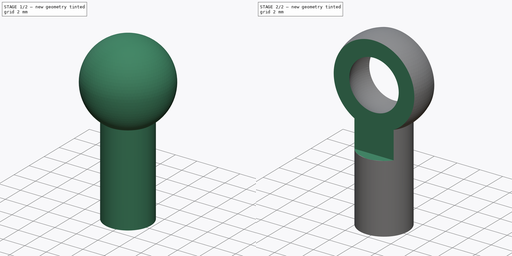
[diagram: build sequence overview — one tinted view per stage of 2, left to right]
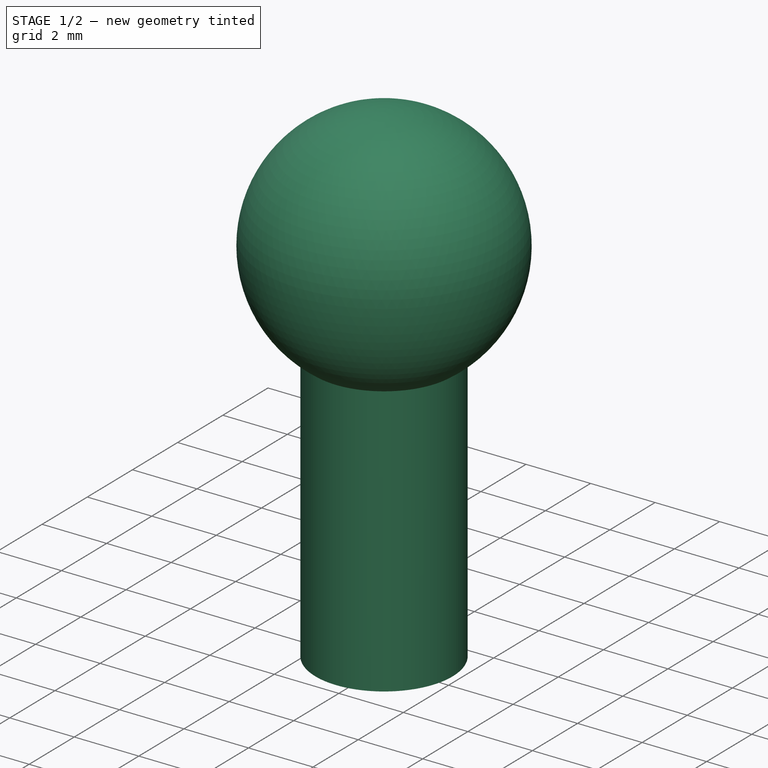
[diagram: stage 1 of 2 — iso view after this stage's code; geometry added in this stage tinted green]
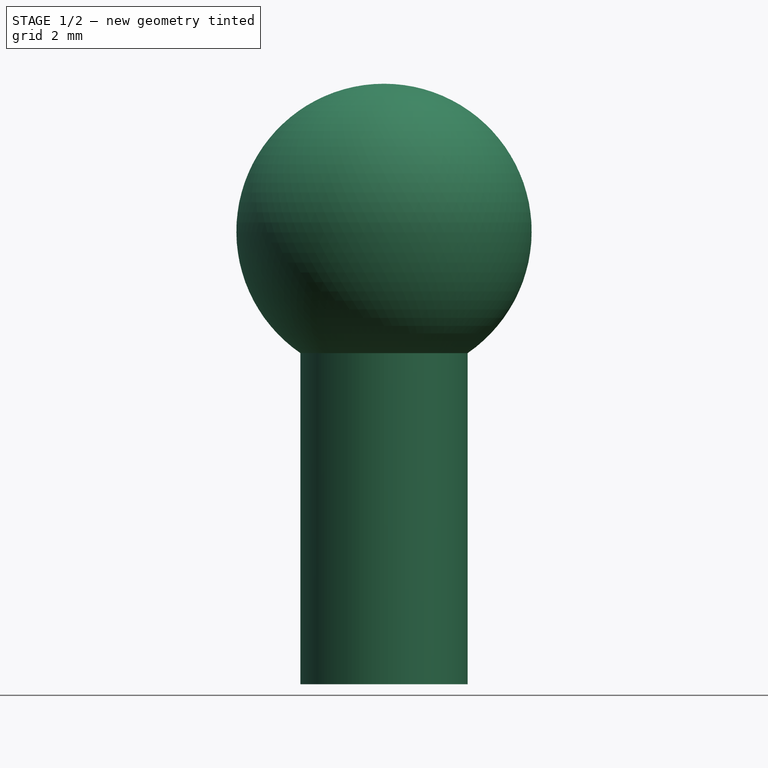
[diagram: stage 1 of 2 — front view after this stage's code; geometry added in this stage tinted green]
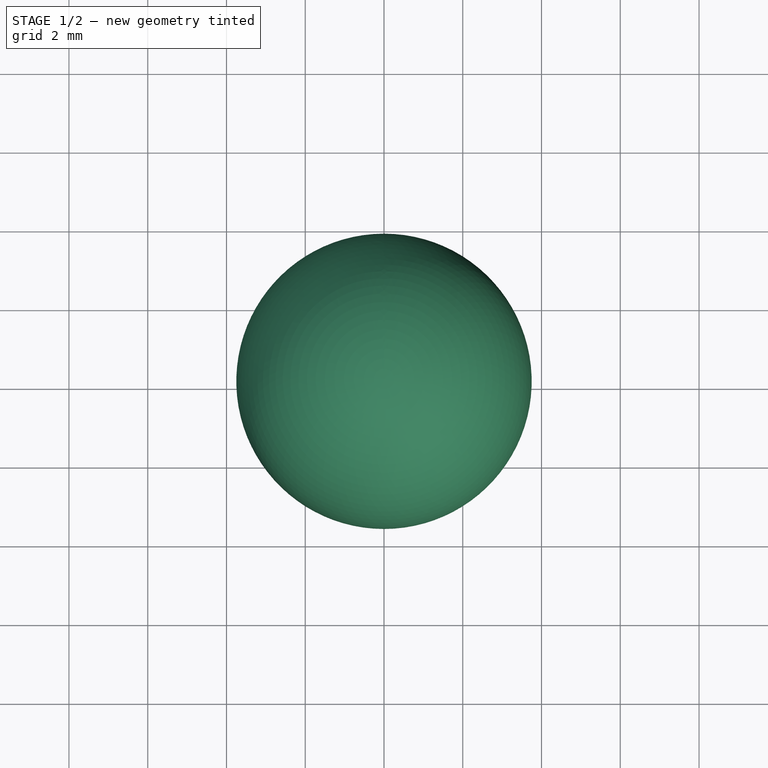
[diagram: stage 1 of 2 — top view after this stage's code; geometry added in this stage tinted green]
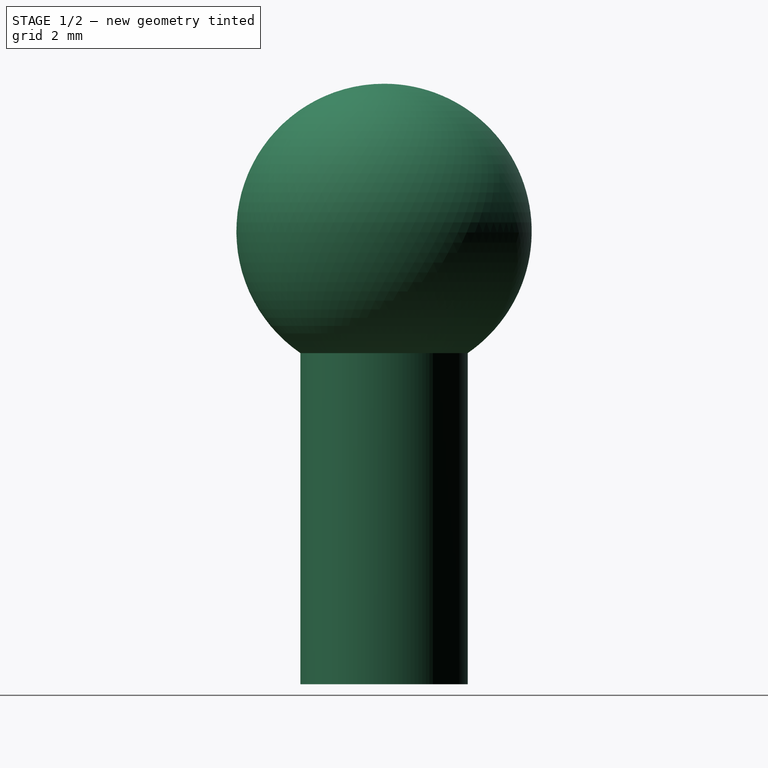
[diagram: stage 1 of 2 — right view after this stage's code; geometry added in this stage tinted green]
FCSTD DOCUMENT  (FreeCAD 1.0R39109 (Git))
Label: M2RodEndBody
License: All rights reserved
LicenseURL: http://en.wikipedia.org/wiki/All_rights_reserved
objects: Sketcher::SketchObject×2, PartDesign::Revolution×1, PartDesign::Pocket×1, PartDesign::Body×1, App::Link×1
note: 11 computed .brp shape members not serialized (recipe doc carries the construction recipe); baked Part::Feature solids carry a one-line shape summary decoded from their .brp
EXTERNAL_REF file=../../Dimentions.FCStd obj=dd

FEATURE [Sketcher::SketchObject] Sketch
  ArcFitTolerance = 1e-06
  AttachmentSupport = -> [YZ_Plane]
  FullyConstrained = true
  MakeInternals = false
  MapMode = 5
  Placement = pos=(0,0,0) rot=(0.57735,0.57735,0.57735;2.0944rad)
  expr: .Constraints.BallDiameter = <<M2RodEnd>>.BallDiameter
  expr: .Constraints.BoltHole = <<M2RodEnd>>.HoleDiameter
  expr: .Constraints.HeadDiameter = <<M2RodEnd>>.HeadDiameter
  expr: .Constraints.ShaftDiameter = <<M2RodEnd>>.ShaftDiameter
  expr: .Constraints.TotalLength = <<M2RodEnd>>.TotalLength
  sketch-geometry (18):
    g0: LineSegment StartX=2.125 StartY=-4.2051 StartZ=0 EndX=2.125 EndY=4.2051 EndZ=0
    g1: LineSegment [constr] StartX=2.125 StartY=4.2051 StartZ=0 EndX=-2.125 EndY=4.2051 EndZ=0
    g2: LineSegment [constr] StartX=-2.125 StartY=4.2051 StartZ=0 EndX=-2.125 EndY=-4.2051 EndZ=0
    g3: Circle [constr] CenterX=9.2e-15 CenterY=-7.2949 CenterZ=0 NormalX=0 NormalY=0 NormalZ=1 AngleXU=0 Radius=3.75
    g4: LineSegment [constr] StartX=-2.125 StartY=-4.2051 StartZ=0 EndX=-1 EndY=-4.2051 EndZ=0
    g5: LineSegment [constr] StartX=-1 StartY=-4.2051 StartZ=0 EndX=-1 EndY=3.0801 EndZ=0
    g6: LineSegment StartX=1 StartY=3.0801 StartZ=0 EndX=1 EndY=-4.2051 EndZ=0
    g7: LineSegment StartX=1 StartY=-4.2051 StartZ=0 EndX=2.125 EndY=-4.2051 EndZ=0
    g8: LineSegment [constr] StartX=1 StartY=4.2051 StartZ=0 EndX=1 EndY=3.0801 EndZ=0
    g9: LineSegment [constr] StartX=1 StartY=3.0801 StartZ=0 EndX=2.125 EndY=3.0801 EndZ=0
    g10: ArcOfCircle CenterX=9.2e-15 CenterY=7.2949 CenterZ=0 NormalX=0 NormalY=0 NormalZ=1 AngleXU=0 Radius=2.5 StartAngle=4.71239 EndAngle=7.85398
    g11: ArcOfCircle [constr] CenterX=3.34022e-07 CenterY=7.2949 CenterZ=0 NormalX=0 NormalY=0 NormalZ=1 AngleXU=0 Radius=2.5 StartAngle=1.5708 EndAngle=4.71239
    g12: ArcOfCircle CenterX=9.2e-15 CenterY=7.2949 CenterZ=0 NormalX=0 NormalY=0 NormalZ=1 AngleXU=0 Radius=3.75 StartAngle=5.31484 EndAngle=7.85398
    g13: ArcOfCircle [constr] CenterX=9.2e-15 CenterY=7.2949 CenterZ=0 NormalX=0 NormalY=0 NormalZ=1 AngleXU=0 Radius=3.75 StartAngle=1.5708 EndAngle=4.10993
    g14: LineSegment [constr] StartX=-1 StartY=3.0801 StartZ=0 EndX=-4e-16 EndY=3.0801 EndZ=0
    g15: LineSegment StartX=-4e-16 StartY=3.0801 StartZ=0 EndX=1 EndY=3.0801 EndZ=0
    g16: LineSegment StartX=4e-16 StartY=11.0449 StartZ=0 EndX=2e-16 EndY=9.7949 EndZ=0
    g17: LineSegment StartX=-4e-16 StartY=4.7949 StartZ=0 EndX=-4e-16 EndY=3.0801 EndZ=0
  constraints (50):
    c: Coincident(g0,g1)
    c: Coincident(g1,g2)
    c: Horizontal(g1)
    c: Vertical(g0)
    c: Vertical(g2)
    c: Symmetric(g2,g0,g-2)
    c: DistanceX(g2,g0) = 4.25  'ShaftDiameter'
    c: PointOnObject(g0,g3)
    c: Coincident(g2,g4)
    c: Horizontal(g4)
    c: Coincident(g4,g5)
    c: Vertical(g5)
    c: Vertical(g6)
    c: Coincident(g6,g7)
    c: Coincident(g7,g0)
    c: Horizontal(g7)
    c: Symmetric(g5,g6,g-2)
    c: PointOnObject(g8,g1)
    c: PointOnObject(g9,g0)
    c: Horizontal(g9)
    c: Vertical(g8)
    c: Equal(g8,g9)
    c: DistanceX(g4,g6) = 2  'BoltHole'
    c: PointOnObject(g10,g-2)
    c: Coincident(g11,g10)
    c: Coincident(g11,g10)
    c: Diameter(g10) = 5  'BallDiameter'
    c: Coincident(g12,g10)
    c: Coincident(g12,g0)
    c: PointOnObject(g12,g-2)
    c: Coincident(g13,g10)
    c: Coincident(g13,g12)
    c: Coincident(g13,g1)
    c: Diameter(g12) = 7.5  'HeadDiameter'
    c: Coincident(g14,g5)
    c: PointOnObject(g14,g-2)
    c: Coincident(g15,g14)
    c: Coincident(g15,g6)
    c: Horizontal(g15)
    c: Coincident(g6,g8)
    c: Coincident(g9,g6)
    c: DistanceY(g4,g12) = 15.25  'TotalLength'
    c: Coincident(g16,g12)
    c: Coincident(g16,g10)
    c: Coincident(g17,g10)
    c: Coincident(g17,g15)
    c: Symmetric(g10,g3,g-1)
    c: Equal(g3,g12)
    c: Vertical(g17)
    c: Equal(g11,g10)
FEATURE [PartDesign::Revolution] Revolution
  Angle = 360
  Angle2 = 60
  Axis = (-3e-16,3e-16,1)
  Base = (0,0,0)
  Placement = pos=(0,0,0) rot=(0.57735,0.57735,0.57735;2.0944rad)
  Profile = -> Sketch
  ReferenceAxis = -> Z_Axis
  Suppressed = false
  Type = 0
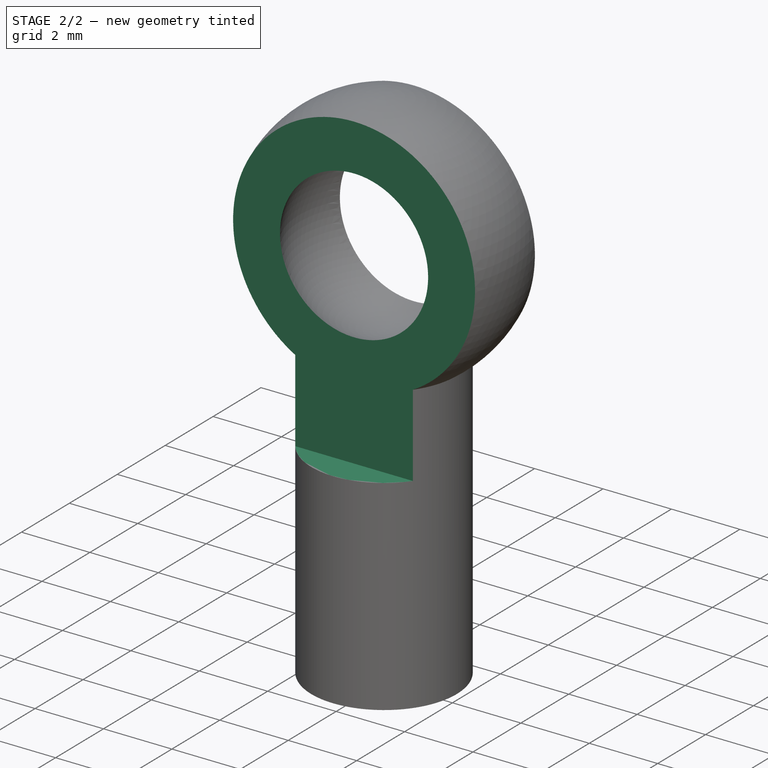
[diagram: stage 2 of 2 — iso view after this stage's code; geometry added in this stage tinted green]
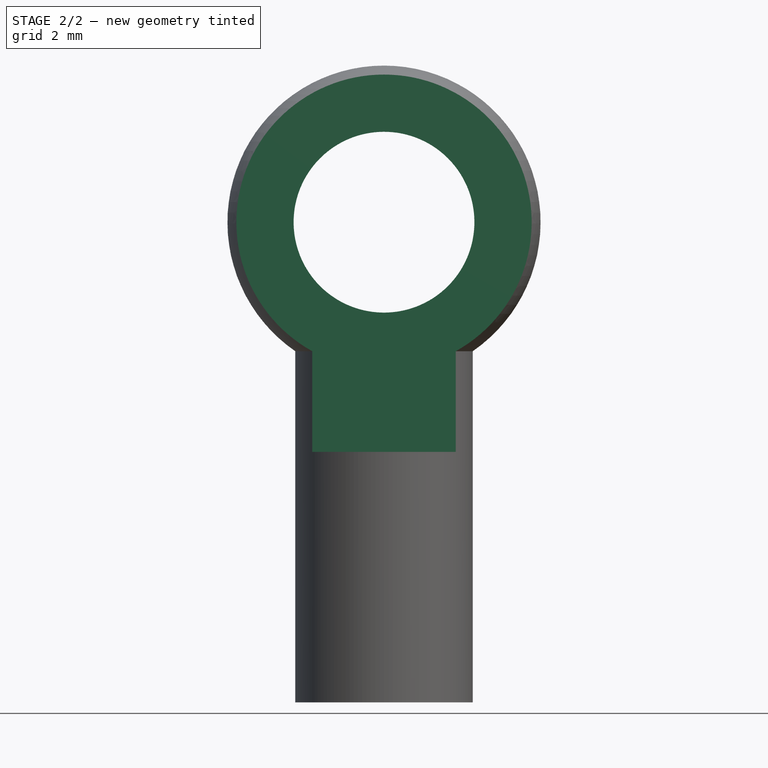
[diagram: stage 2 of 2 — front view after this stage's code; geometry added in this stage tinted green]
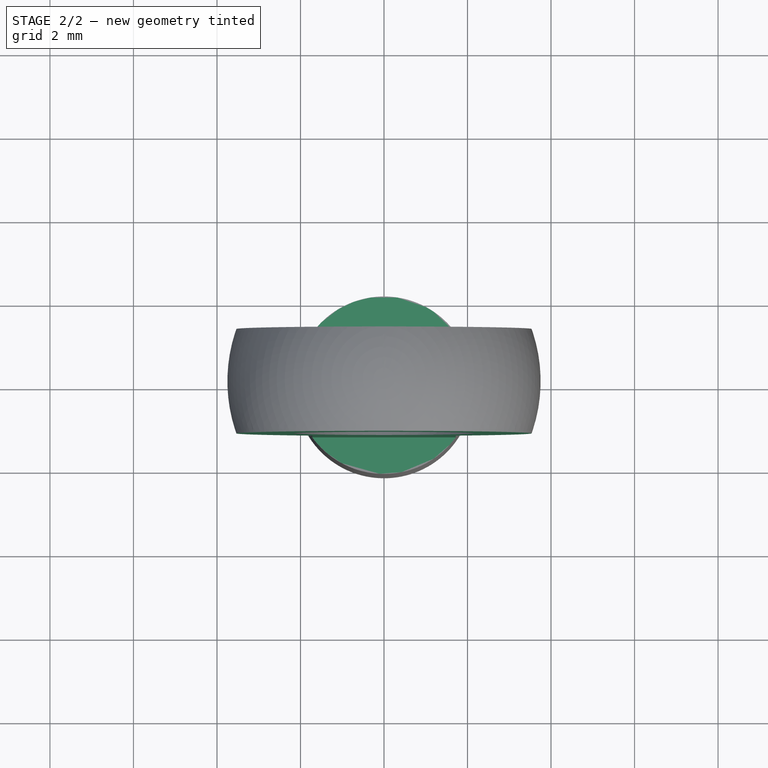
[diagram: stage 2 of 2 — top view after this stage's code; geometry added in this stage tinted green]
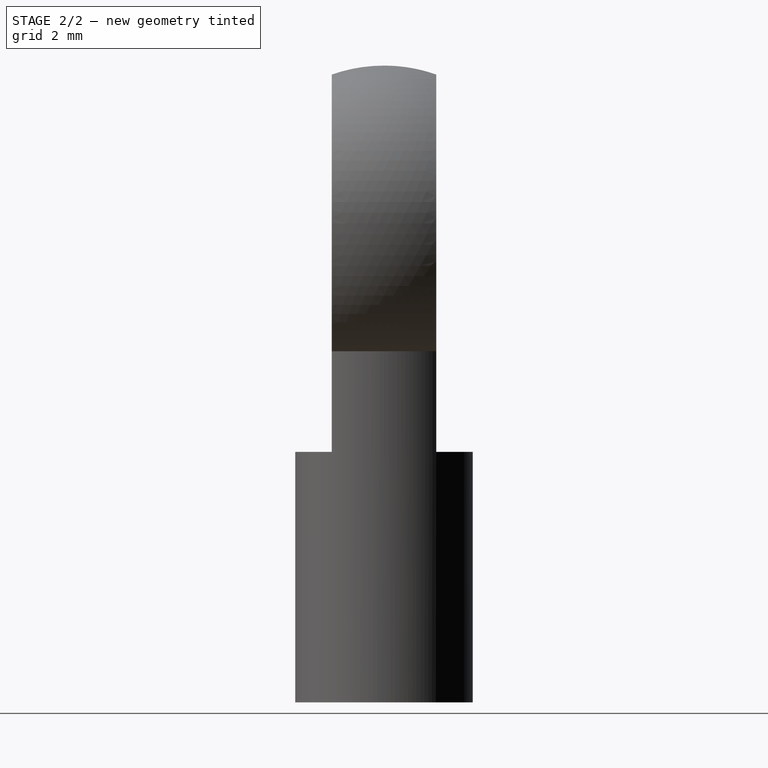
[diagram: stage 2 of 2 — right view after this stage's code; geometry added in this stage tinted green]
FEATURE [Sketcher::SketchObject] Sketch001
  ArcFitTolerance = 1e-06
  AttachmentSupport = -> [YZ_Plane]
  FullyConstrained = true
  MakeInternals = false
  MapMode = 5
  Placement = pos=(0,0,0) rot=(0.57735,0.57735,0.57735;2.0944rad)
  expr: .Constraints.HeadThickness = <<M2RodEnd>>.HeadThickness
  expr: Constraints[30] = <<M2RodEnd>>.NonFlatShaftLength
  sketch-geometry (12):
    g0: LineSegment StartX=1.25 StartY=12.7949 StartZ=0 EndX=12.25 EndY=12.7949 EndZ=0
    g1: LineSegment StartX=12.25 StartY=12.7949 StartZ=0 EndX=12.25 EndY=1.7949 EndZ=0
    g2: LineSegment StartX=12.25 StartY=1.7949 StartZ=0 EndX=1.25 EndY=1.7949 EndZ=0
    g3: LineSegment StartX=1.25 StartY=1.7949 StartZ=0 EndX=1.25 EndY=12.7949 EndZ=0
    g4: LineSegment StartX=-12.25 StartY=12.7949 StartZ=0 EndX=-1.25 EndY=12.7949 EndZ=0
    g5: LineSegment StartX=-1.25 StartY=12.7949 StartZ=0 EndX=-1.25 EndY=1.7949 EndZ=0
    g6: LineSegment StartX=-1.25 StartY=1.7949 StartZ=0 EndX=-12.25 EndY=1.7949 EndZ=0
    g7: LineSegment StartX=-12.25 StartY=1.7949 StartZ=0 EndX=-12.25 EndY=12.7949 EndZ=0
    g8: LineSegment [constr] StartX=-1.25 StartY=12.7949 StartZ=0 EndX=1.25 EndY=12.7949 EndZ=0
    g9: LineSegment [constr] StartX=-1.25 StartY=1.7949 StartZ=0 EndX=1.25 EndY=1.7949 EndZ=0
    g10: LineSegment [constr] StartX=-1.25 StartY=12.7949 StartZ=0 EndX=9.1e-15 EndY=7.2949 EndZ=0
    g11: LineSegment [constr] StartX=-1.25 StartY=1.7949 StartZ=0 EndX=9.1e-15 EndY=7.2949 EndZ=0
  constraints (31):
    c: Coincident(g0,g1)
    c: Coincident(g1,g2)
    c: Coincident(g2,g3)
    c: Coincident(g3,g0)
    c: Horizontal(g0)
    c: Horizontal(g2)
    c: Vertical(g1)
    c: Vertical(g3)
    c: Coincident(g4,g5)
    c: Coincident(g5,g6)
    c: Coincident(g6,g7)
    c: Coincident(g7,g4)
    c: Horizontal(g4)
    c: Horizontal(g6)
    c: Vertical(g5)
    c: Vertical(g7)
    c: Coincident(g8,g4)
    c: Coincident(g8,g0)
    c: Symmetric(g4,g0,g-2)
    c: Coincident(g9,g5)
    c: Coincident(g9,g2)
    c: Horizontal(g9)
    c: Coincident(g4,g10)
    c: Coincident(g10,g-3)
    c: Coincident(g5,g11)
    c: Coincident(g11,g-3)
    c: Equal(g10,g11)
    c: DistanceX(g8,g8) = 2.5  'HeadThickness'
    c: Equal(g0,g4)
    c: Equal(g3,g2)
    c: DistanceY(g-4,g2) = 6
FEATURE [PartDesign::Pocket] Pocket
  BaseFeature = -> Revolution
  Direction = (-1,0,0)
  Length = 5
  Length2 = 100
  Midplane = true
  Placement = pos=(0,0,0) rot=(0.57735,0.57735,0.57735;2.0944rad)
  Profile = -> Sketch001
  Suppressed = false
  Type = 1
FEATURE [PartDesign::Body] Body  label="RodEndBody"
  AllowCompound = false
  Group = -> [Sketch,Revolution,Sketch001,Pocket]
  Origin = -> Origin
  Tip = -> Pocket
FEATURE [App::Link] Link001  label="M2RodEnd"
  LinkedObject = -> <external ../../Dimentions.FCStd>#dd
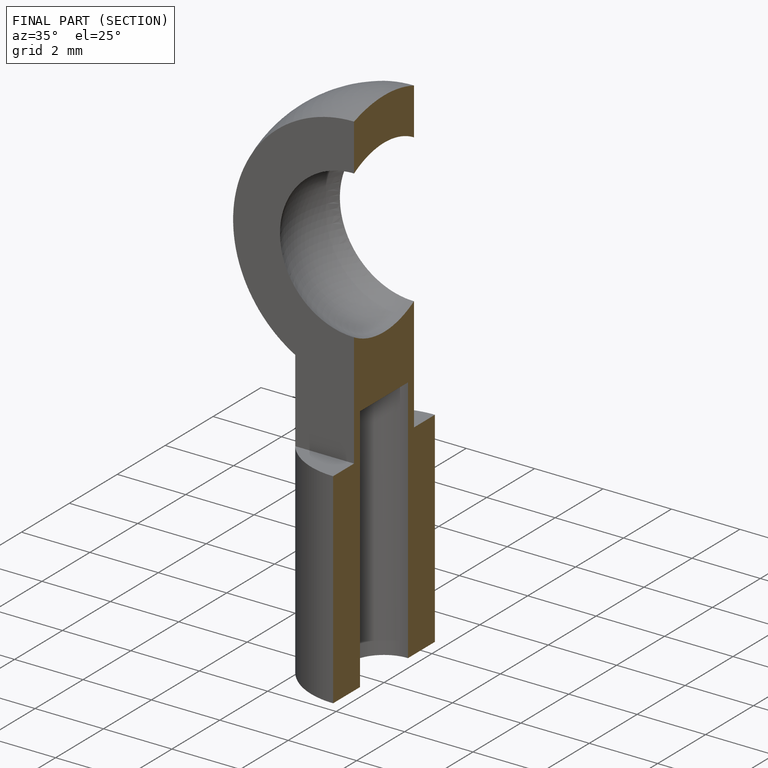
[diagram: finished part — half-section view (interior)]
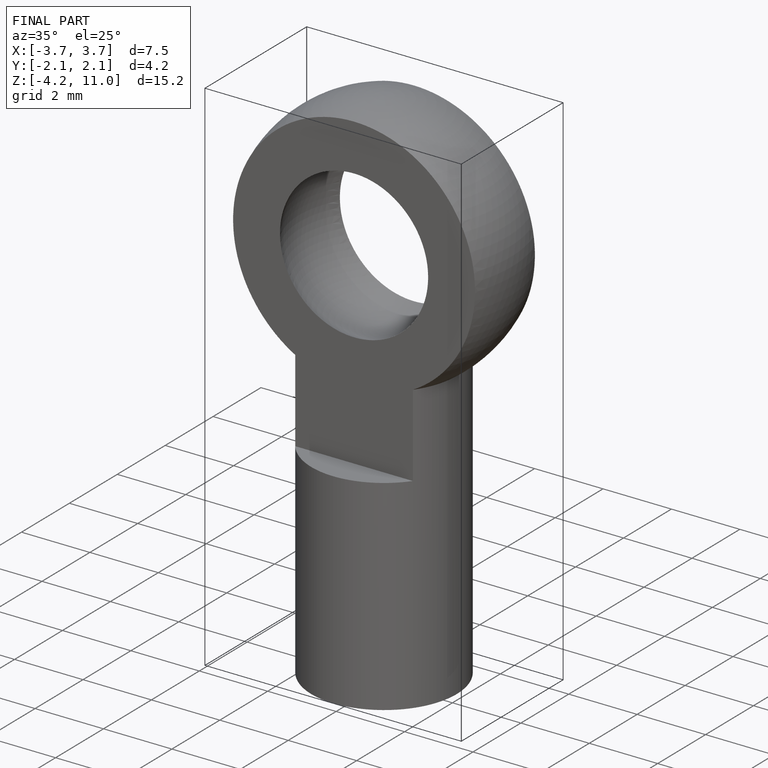
[diagram: finished part — iso view with bounding-box wireframe]
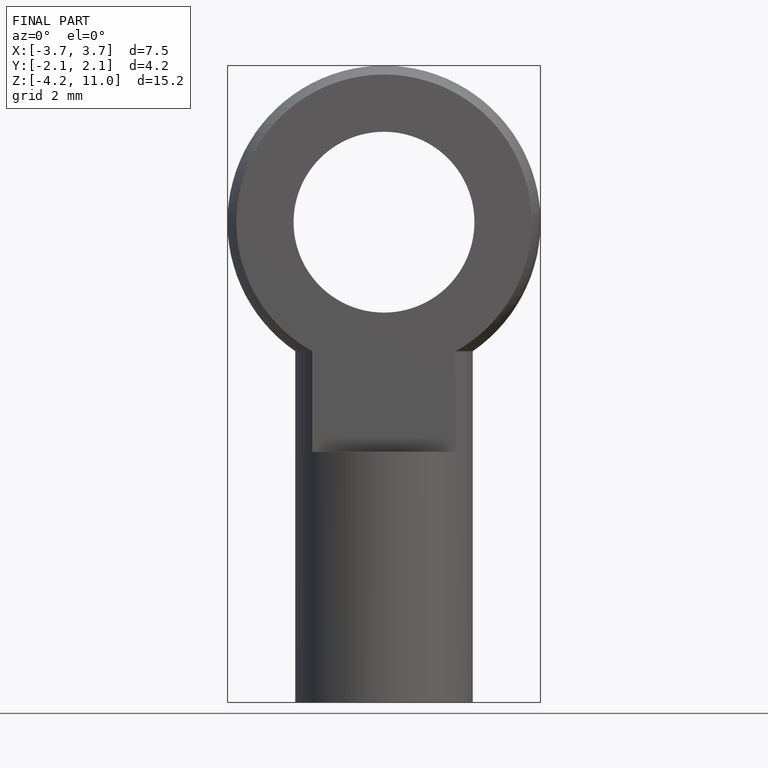
[diagram: finished part — front view with bounding-box wireframe]
